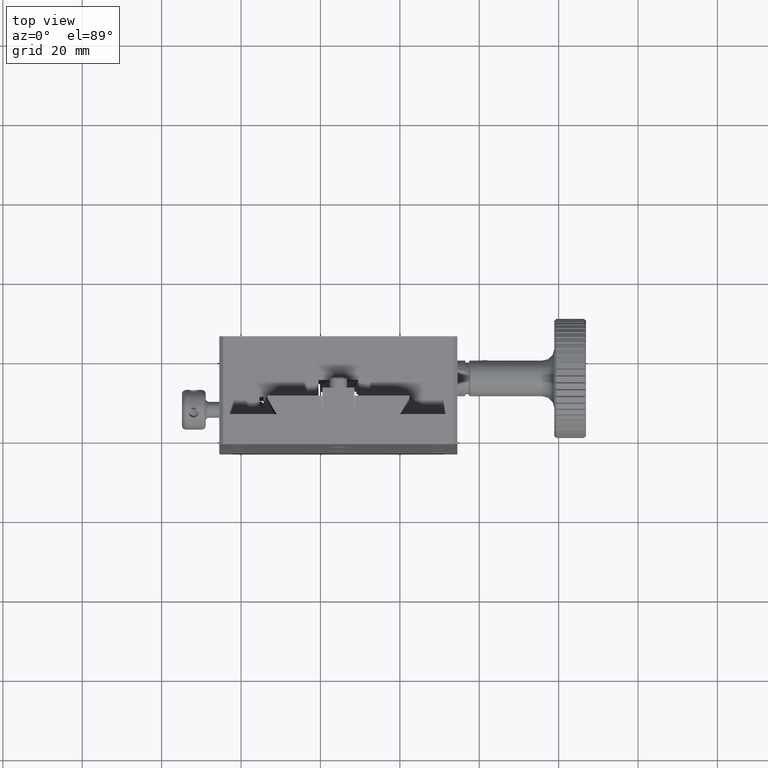
[diagram: clean part render]
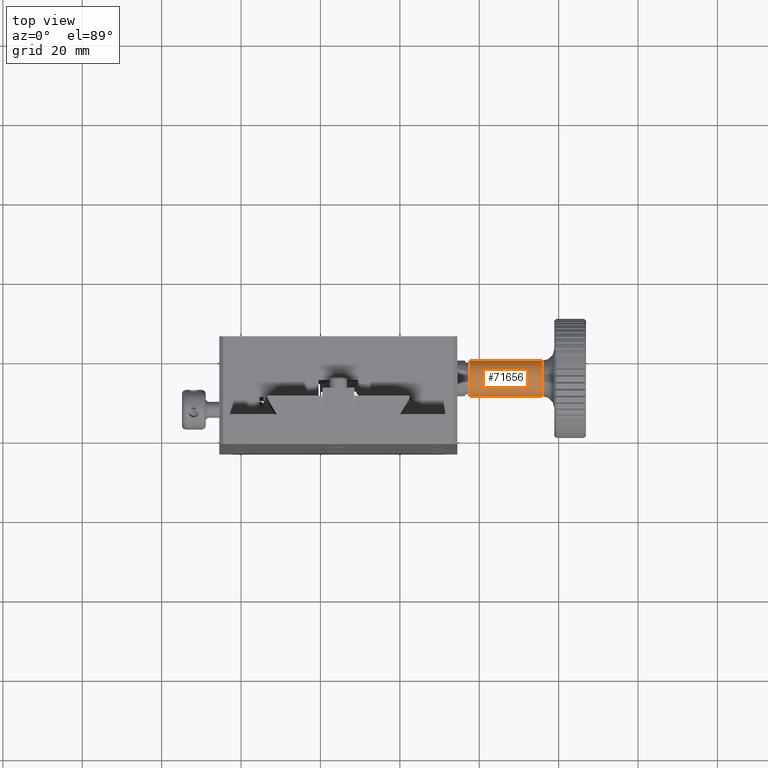
[diagram: same view with one face highlighted and labeled with its STEP entity id]
A machine part, top view. The second image highlights one B-rep face of the part: STEP entity #71656.
In plain terms, the highlighted cylindrical surface (bore or boss wall) has radius 4.5 mm, axis along (-1, -0, 0).
Its self-contained STEP definition (entity closure, byte-faithful):
#570 = CARTESIAN_POINT ( 'NONE',  ( 97.70156960994280837, 70.50408794080190944, 86.06019698115960637 ) ) ;
#2523 = DIRECTION ( 'NONE',  ( -1.000000000000000000, -7.255693219817080100E-14, 3.296481619773228797E-18 ) ) ;
#3883 = CARTESIAN_POINT ( 'NONE',  ( 102.4000429440893498, 78.87808728905410760, 83.76764353940743035 ) ) ;
#5404 = CARTESIAN_POINT ( 'NONE',  ( 101.5674949039847803, 78.60249266058328033, 83.35807124892392039 ) ) ;
#5894 = CARTESIAN_POINT ( 'NONE',  ( 100.5750683722046972, 78.78486476205760880, 83.61904942272865071 ) ) ;
#11578 = CARTESIAN_POINT ( 'NONE',  ( 101.4015696099421717, 79.48928681758570747, 85.69551762103615999 ) ) ;
#12076 = CARTESIAN_POINT ( 'NONE',  ( 102.6514089041538824, 79.15284974519904893, 84.30958303946287913 ) ) ;
#13240 = DIRECTION ( 'NONE',  ( 1.000000000000000000, 7.255693219817080100E-14, -3.296481619773228797E-18 ) ) ;
#15411 = VERTEX_POINT ( 'NONE', #78330 ) ;
#17342 = CARTESIAN_POINT ( 'NONE',  ( 115.9015696099424844, 75.00408794080323105, 86.06019698115960637 ) ) ;
#17393 = CIRCLE ( 'NONE', #95727, 4.500000000000003553 ) ;
#19228 = CARTESIAN_POINT ( 'NONE',  ( 101.0727492934848755, 79.48683471696290326, 85.66118704733575839 ) ) ;
#19742 = CARTESIAN_POINT ( 'NONE',  ( 101.0717486688635063, 78.62364279688419799, 83.38568138232793103 ) ) ;
#20240 = CARTESIAN_POINT ( 'NONE',  ( 102.6516490685460212, 79.24013572007213213, 84.53946767179378696 ) ) ;
#21245 = CARTESIAN_POINT ( 'NONE',  ( 102.0325993324262583, 78.69918718426110615, 83.49105927789831583 ) ) ;
#24598 = CARTESIAN_POINT ( 'NONE',  ( 101.4015696099421433, 79.48928681758567905, 85.69551762103614578 ) ) ;
#26538 = FACE_OUTER_BOUND ( 'NONE', #76961, .T. ) ;
#26884 = CARTESIAN_POINT ( 'NONE',  ( 100.1916914889825421, 79.08602265867430958, 84.16433856289599191 ) ) ;
#27912 = CARTESIAN_POINT ( 'NONE',  ( 101.4015696099421717, 79.48928681758570747, 85.69551762103615999 ) ) ;
#33724 = DIRECTION ( 'NONE',  ( 7.401486830834371467E-14, -1.000000000000000000, 0.000000000000000000 ) ) ;
#34731 = CYLINDRICAL_SURFACE ( 'NONE', #38554, 4.500000000000003553 ) ;
#35585 = CARTESIAN_POINT ( 'NONE',  ( 100.1517303082752193, 79.27001137753580906, 84.61840348005955548 ) ) ;
#36602 = CARTESIAN_POINT ( 'NONE',  ( 101.2354653099796025, 78.60250752105307015, 83.35809103863626035 ) ) ;
#37093 = CARTESIAN_POINT ( 'NONE',  ( 100.6323986125136400, 79.46224246955169690, 85.43687516621096734 ) ) ;
#38554 = AXIS2_PLACEMENT_3D ( 'NONE', #57750, #2523, #33724 ) ;
#43268 = CARTESIAN_POINT ( 'NONE',  ( 101.9573027331046404, 79.47677038534740745, 85.56404747228421570 ) ) ;
#43779 = CARTESIAN_POINT ( 'NONE',  ( 102.4013032479789871, 79.42362171095878409, 85.20484878834480469 ) ) ;
#44292 = CARTESIAN_POINT ( 'NONE',  ( 100.1850274787841926, 79.31961841490850418, 84.77605628260926096 ) ) ;
#50431 = CARTESIAN_POINT ( 'NONE',  ( 100.3098305018962009, 78.94873065673627366, 83.88922466305992032 ) ) ;
#50943 = CARTESIAN_POINT ( 'NONE',  ( 102.6181087209845657, 79.08539913467971871, 84.15869198301381005 ) ) ;
#51437 = CARTESIAN_POINT ( 'NONE',  ( 102.1707003850382165, 78.75380022225107268, 83.56954846322349795 ) ) ;
#51937 = CARTESIAN_POINT ( 'NONE',  ( 102.2280353502620187, 79.45266534319877394, 85.37929029591322205 ) ) ;
#52451 = CARTESIAN_POINT ( 'NONE',  ( 102.4930593348562411, 78.94868195510211706, 83.88925239835872105 ) ) ;
#54825 = CIRCLE ( 'NONE', #97334, 4.500000000000003553 ) ;
#55532 = ORIENTED_EDGE ( 'NONE', *, *, #77898, .T. ) ;
#57258 = FACE_OUTER_BOUND ( 'NONE', #64201, .T. ) ;
#57750 = CARTESIAN_POINT ( 'NONE',  ( 97.40156960994249857, 75.00408794080189523, 86.06019698115960637 ) ) ;
#58095 = CARTESIAN_POINT ( 'NONE',  ( 101.7303177221655659, 78.62342365548096268, 83.38538185824360482 ) ) ;
#58238 = FACE_BOUND ( 'NONE', #99085, .T. ) ;
#60119 = CARTESIAN_POINT ( 'NONE',  ( 100.4030746757167094, 79.42385602813783407, 85.20619350261272018 ) ) ;
#64201 = EDGE_LOOP ( 'NONE', ( #89235 ) ) ;
#64396 = DIRECTION ( 'NONE',  ( 2.467162276944790489E-14, -0.3547146915081743068, -0.9349745919693543961 ) ) ;
#65899 = DIRECTION ( 'NONE',  ( -1.000000000000000000, -7.255693219817080100E-14, 3.296481619773228797E-18 ) ) ;
#66275 = CARTESIAN_POINT ( 'NONE',  ( 100.6376879292982522, 78.75588922417912841, 83.57501058831554985 ) ) ;
#66794 = CARTESIAN_POINT ( 'NONE',  ( 100.2153900371924351, 79.05232069449127152, 84.09356450086737311 ) ) ;
#66927 = B_SPLINE_CURVE_WITH_KNOTS ( 'NONE', 3,
 ( #27912, #82153, #19228, #90333, #37093, #60119, #91330, #44292, #35585, #75993, #73980, #26884, #66794, #50431, #98990, #5894, #66275, #67313, #81652, #19742, #36602, #5404, #58095, #21245, #51437, #3883, #52451, #50943, #12076, #20240, #83658, #82646, #97995, #74477, #43779, #51937, #89312, #67801, #43268, #68299, #75501, #11578 ),
 .UNSPECIFIED., .T., .F.,
 ( 4, 2, 2, 2, 2, 2, 2, 2, 2, 2, 2, 2, 2, 2, 2, 2, 2, 2, 2, 2, 4 ),
 ( 0.000000000000000000, 0.0004907556341356438976, 0.0009815112682712877953, 0.001472266902406931584, 0.001963022536542575591, 0.002208400353610371139, 0.002453778170678165820, 0.002944533804813722223, 0.003189911621881506495, 0.003435289438949290335, 0.003926045073084833727, 0.004416800707220376251, 0.004907556341355918776, 0.005398311975491461301, 0.005889067609627004693, 0.006134445426694784195, 0.006379823243762563698, 0.006870578877898157397, 0.007115956694965957716, 0.007361334512033758035, 0.007852090146169356938 ),
 .UNSPECIFIED. ) ;
#67313 = CARTESIAN_POINT ( 'NONE',  ( 100.7726341386915294, 78.70370824342587923, 83.49797648058977018 ) ) ;
#67801 = CARTESIAN_POINT ( 'NONE',  ( 102.0304543762447622, 79.47223772649707030, 85.52372545086632272 ) ) ;
#68299 = CARTESIAN_POINT ( 'NONE',  ( 101.7313200717805017, 79.48680363959114459, 85.66085965078623587 ) ) ;
#70639 = ORIENTED_EDGE ( 'NONE', *, *, #72701, .T. ) ;
#71656 = ADVANCED_FACE ( 'NONE', ( #26538, #57258, #58238 ), #34731, .T. ) ;
#72701 = EDGE_CURVE ( 'NONE', #77815, #77815, #17393, .T. ) ;
#73980 = CARTESIAN_POINT ( 'NONE',  ( 100.1596739060053949, 79.15117025733994183, 84.31143214764685467 ) ) ;
#74477 = CARTESIAN_POINT ( 'NONE',  ( 102.4932945791758954, 79.39608960256147441, 85.06840555155142169 ) ) ;
#75501 = CARTESIAN_POINT ( 'NONE',  ( 101.5675778659685449, 79.48928681758570747, 85.69551762103614578 ) ) ;
#75993 = CARTESIAN_POINT ( 'NONE',  ( 100.1514901550631436, 79.18285406697629014, 84.38848185001106117 ) ) ;
#76961 = EDGE_LOOP ( 'NONE', ( #70639 ) ) ;
#77815 = VERTEX_POINT ( 'NONE', #570 ) ;
#77898 = EDGE_CURVE ( 'NONE', #85486, #85486, #66927, .T. ) ;
#78330 = CARTESIAN_POINT ( 'NONE',  ( 115.9015696099425980, 73.40787182901645735, 81.85281131729750825 ) ) ;
#78812 = EDGE_CURVE ( 'NONE', #15411, #15411, #54825, .T. ) ;
#81652 = CARTESIAN_POINT ( 'NONE',  ( 100.8457803573760998, 78.68035401496085512, 83.46479325280928663 ) ) ;
#82153 = CARTESIAN_POINT ( 'NONE',  ( 101.2355613539157844, 79.48928681758569326, 85.69551762103617421 ) ) ;
#82646 = CARTESIAN_POINT ( 'NONE',  ( 102.6114441565222961, 79.31634818563237843, 84.77144474935033713 ) ) ;
#83309 = CARTESIAN_POINT ( 'NONE',  ( 97.70156960994246731, 75.00408794080192365, 86.06019698115960637 ) ) ;
#83658 = CARTESIAN_POINT ( 'NONE',  ( 102.6434645734738638, 79.26753305935338290, 84.61814758698528749 ) ) ;
#85486 = VERTEX_POINT ( 'NONE', #24598 ) ;
#89235 = ORIENTED_EDGE ( 'NONE', *, *, #78812, .T. ) ;
#89312 = CARTESIAN_POINT ( 'NONE',  ( 102.1654110541964968, 79.46019184790991119, 85.43146637169292035 ) ) ;
#90333 = CARTESIAN_POINT ( 'NONE',  ( 100.7704898668564795, 79.47343530953254742, 85.53183944682108120 ) ) ;
#91330 = CARTESIAN_POINT ( 'NONE',  ( 100.3100660500483770, 79.39602274753451638, 85.06836571525467150 ) ) ;
#92472 = DIRECTION ( 'NONE',  ( 7.401486830834371467E-14, -1.000000000000000000, 0.000000000000000000 ) ) ;
#95727 = AXIS2_PLACEMENT_3D ( 'NONE', #83309, #13240, #92472 ) ;
#97334 = AXIS2_PLACEMENT_3D ( 'NONE', #17342, #65899, #64396 ) ;
#97995 = CARTESIAN_POINT ( 'NONE',  ( 102.5877435238686388, 79.33807210839293589, 84.84676653640454447 ) ) ;
#98990 = CARTESIAN_POINT ( 'NONE',  ( 100.4018135614251293, 78.87883493085098507, 83.76885788364226926 ) ) ;
#99085 = EDGE_LOOP ( 'NONE', ( #55532 ) ) ;